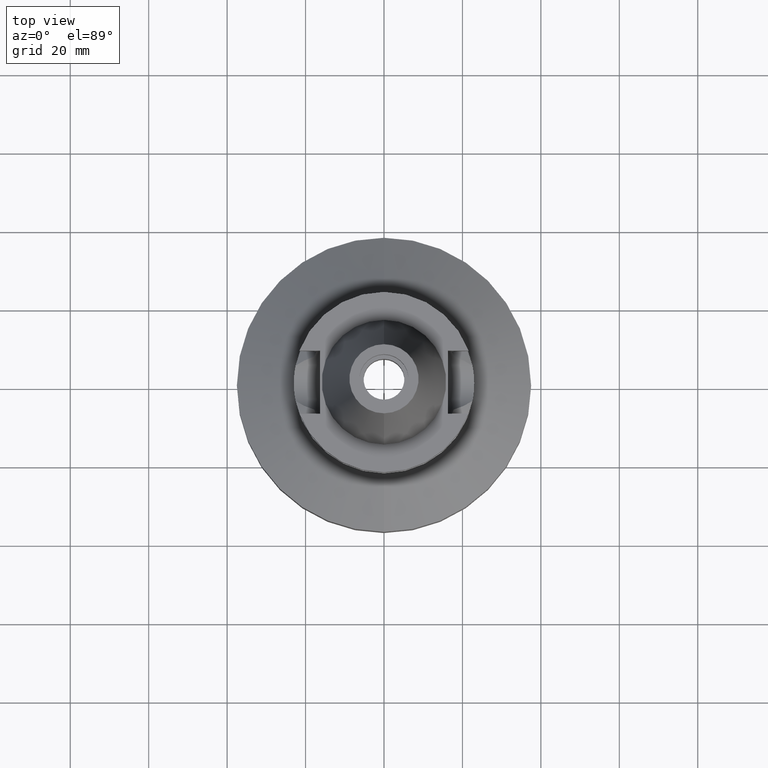
[diagram: clean part render]
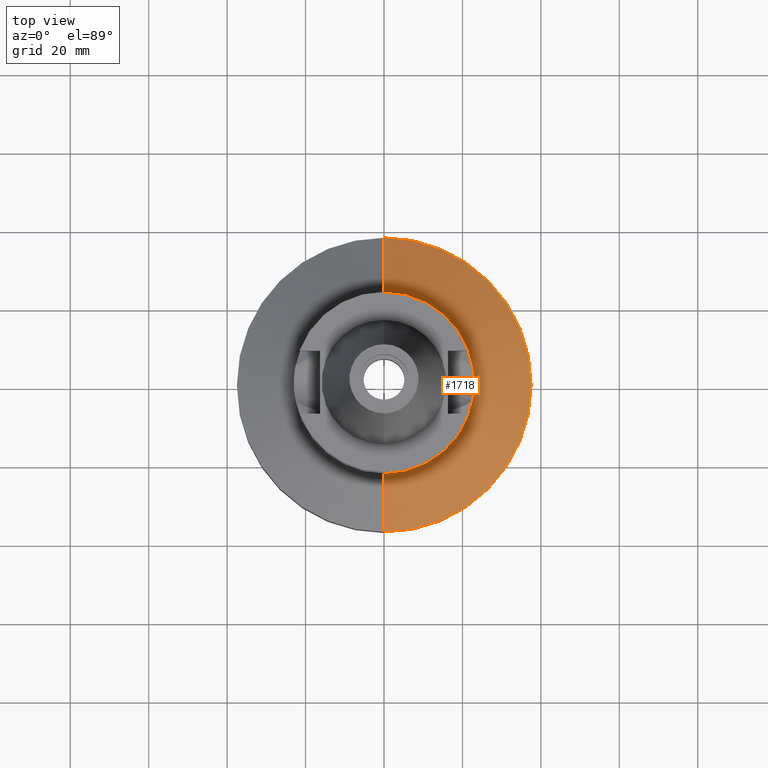
[diagram: same view with one face highlighted and labeled with its STEP entity id]
A machine part, top view. The second image highlights one B-rep face of the part: STEP entity #1718.
In plain terms, the highlighted conical surface has half-angle 56.76 deg.
Its self-contained STEP definition (entity closure, byte-faithful):
#661=DIRECTION('',(0.E0,8.363818383312E-1,-5.481472617005E-1));
#662=VECTOR('',#661,1.769526706789E1);
#663=CARTESIAN_POINT('',(0.E0,2.27E1,-3.084538781168E1));
#664=LINE('',#663,#662);
#668=CARTESIAN_POINT('',(0.E0,0.E0,-4.0545E1));
#669=DIRECTION('',(0.E0,0.E0,-1.E0));
#670=DIRECTION('',(0.E0,1.E0,0.E0));
#671=AXIS2_PLACEMENT_3D('',#668,#669,#670);
#676=CARTESIAN_POINT('',(0.E0,0.E0,-3.084538781168E1));
#677=DIRECTION('',(0.E0,0.E0,1.E0));
#678=DIRECTION('',(0.E0,-1.E0,0.E0));
#679=AXIS2_PLACEMENT_3D('',#676,#677,#678);
#692=DIRECTION('',(0.E0,-8.363818383312E-1,-5.481472617005E-1));
#693=VECTOR('',#692,1.769526706789E1);
#694=CARTESIAN_POINT('',(0.E0,-2.27E1,-3.084538781168E1));
#695=LINE('',#694,#693);
#1155=CARTESIAN_POINT('',(0.E0,3.75E1,-4.0545E1));
#1156=VERTEX_POINT('',#1155);
#1157=CARTESIAN_POINT('',(0.E0,-3.75E1,-4.0545E1));
#1158=VERTEX_POINT('',#1157);
#1159=CARTESIAN_POINT('',(0.E0,2.27E1,-3.084538781168E1));
#1160=VERTEX_POINT('',#1159);
#1161=CARTESIAN_POINT('',(0.E0,-2.27E1,-3.084538781168E1));
#1162=VERTEX_POINT('',#1161);
#1704=CARTESIAN_POINT('',(0.E0,0.E0,-3.569519390584E1));
#1705=DIRECTION('',(0.E0,0.E0,-1.E0));
#1706=DIRECTION('',(0.E0,-1.E0,0.E0));
#1707=AXIS2_PLACEMENT_3D('',#1704,#1705,#1706);
#1708=CONICAL_SURFACE('',#1707,3.01E1,5.676E1);
#1710=ORIENTED_EDGE('',*,*,#1709,.T.);
#1712=ORIENTED_EDGE('',*,*,#1711,.T.);
#1714=ORIENTED_EDGE('',*,*,#1713,.F.);
#1715=ORIENTED_EDGE('',*,*,#1697,.T.);
#1716=EDGE_LOOP('',(#1710,#1712,#1714,#1715));
#1717=FACE_OUTER_BOUND('',#1716,.F.);
#672=CIRCLE('',#671,3.75E1);
#680=CIRCLE('',#679,2.27E1);
#1697=EDGE_CURVE('',#1162,#1160,#680,.T.);
#1709=EDGE_CURVE('',#1160,#1156,#664,.T.);
#1711=EDGE_CURVE('',#1156,#1158,#672,.T.);
#1713=EDGE_CURVE('',#1162,#1158,#695,.T.);
#1718=ADVANCED_FACE('',(#1717),#1708,.T.);